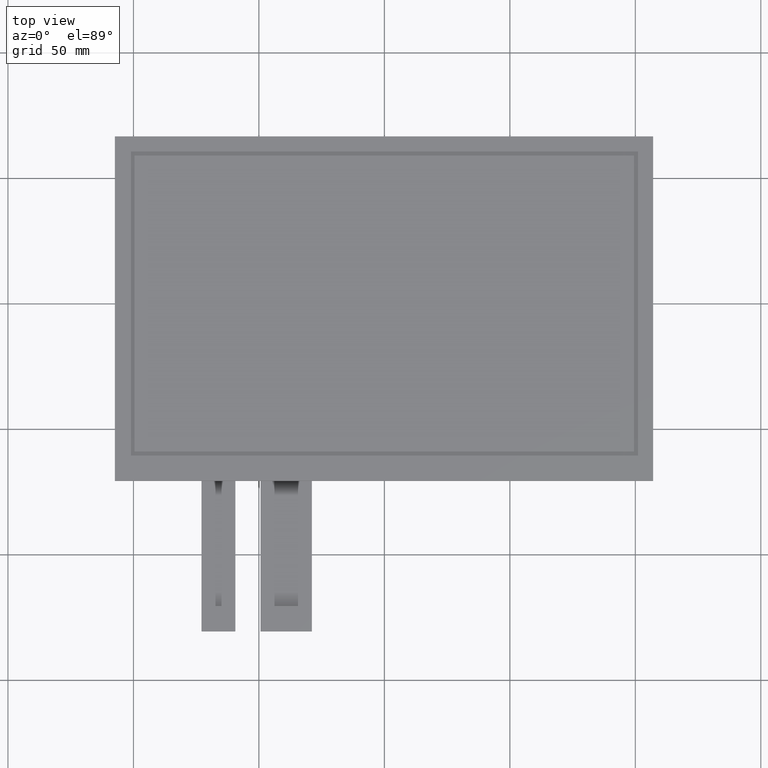
[diagram: clean part render]
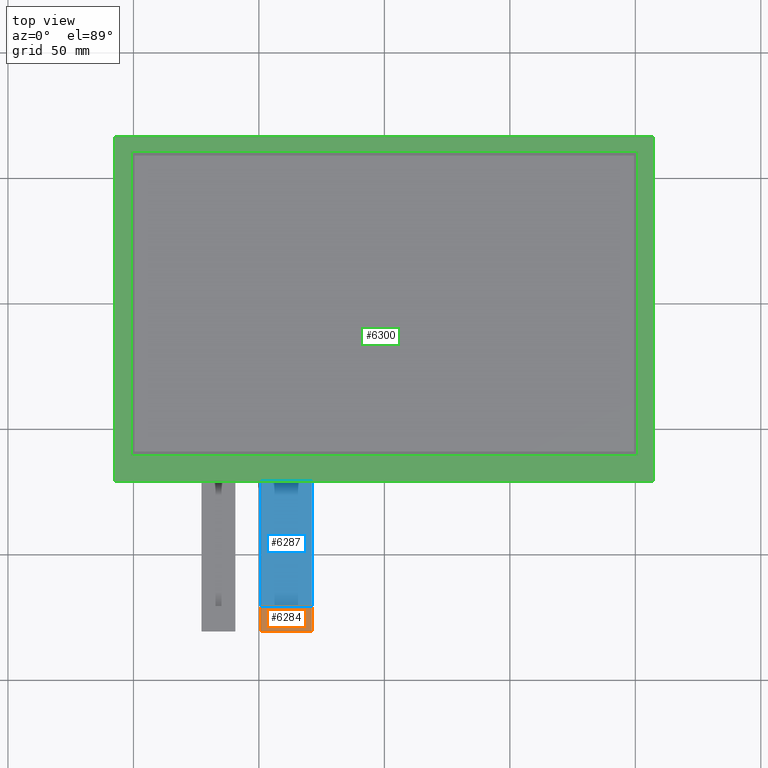
[diagram: same view with three faces highlighted in distinct colors, each labeled with its STEP entity id]
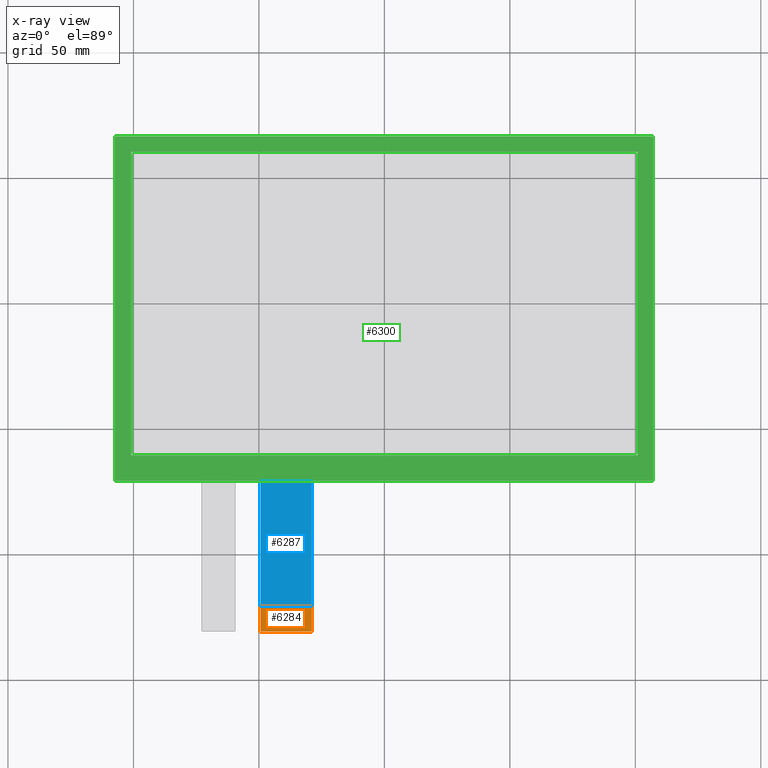
[diagram: x-ray of the same camera — body ghosted, the three highlighted faces saturated]
A machine part, top view with three faces highlighted in distinct colors.
The next image is the same camera in x-ray (body ghosted, the three faces saturated) — at least one of them is partly hidden behind the body in this view.
Their STEP definitions:

[orange] entity #6284 — the highlighted planar face has unit normal (0, 0, 1).
#346=PLANE('',#6614);
#648=FACE_OUTER_BOUND('',#950,.T.);
#950=EDGE_LOOP('',(#5889,#5890,#5891,#5892,#5893,#5894));
#1263=LINE('',#8727,#2143);
#1274=LINE('',#8753,#2154);
#1808=LINE('',#9822,#2688);
#1814=LINE('',#9832,#2694);
#2143=VECTOR('',#6953,10.);
#2154=VECTOR('',#6974,10.);
#2688=VECTOR('',#8042,10.);
#2694=VECTOR('',#8050,10.);
#2741=CIRCLE('',#6338,0.2);
#2744=CIRCLE('',#6344,0.2);
#2866=VERTEX_POINT('',#8394);
#2867=VERTEX_POINT('',#8395);
#3031=VERTEX_POINT('',#8725);
#3035=VERTEX_POINT('',#8737);
#3041=VERTEX_POINT('',#8751);
#3309=VERTEX_POINT('',#9821);
#3463=EDGE_CURVE('',#2866,#2867,#2741,.T.);
#3629=EDGE_CURVE('',#2866,#3031,#1263,.T.);
#3635=EDGE_CURVE('',#3035,#3031,#2744,.T.);
#3642=EDGE_CURVE('',#3035,#3041,#1274,.T.);
#4176=EDGE_CURVE('',#3309,#2867,#1808,.T.);
#4182=EDGE_CURVE('',#3041,#3309,#1814,.T.);
#5889=ORIENTED_EDGE('',*,*,#3463,.F.);
#5890=ORIENTED_EDGE('',*,*,#3629,.T.);
#5891=ORIENTED_EDGE('',*,*,#3635,.F.);
#5892=ORIENTED_EDGE('',*,*,#3642,.T.);
#5893=ORIENTED_EDGE('',*,*,#4182,.T.);
#5894=ORIENTED_EDGE('',*,*,#4176,.T.);
#6284=ADVANCED_FACE('',(#648),#346,.T.);
#6338=AXIS2_PLACEMENT_3D('',#8396,#6783,#6784);
#6344=AXIS2_PLACEMENT_3D('',#8739,#6964,#6965);
#6614=AXIS2_PLACEMENT_3D('',#9833,#8051,#8052);
#6783=DIRECTION('center_axis',(0.,0.,-1.));
#6784=DIRECTION('ref_axis',(-0.707106781186548,-0.707106781186548,0.));
#6953=DIRECTION('',(1.,0.,0.));
#6964=DIRECTION('center_axis',(0.,0.,-1.));
#6965=DIRECTION('ref_axis',(0.707106781186563,-0.707106781186532,0.));
#6974=DIRECTION('',(0.,1.,0.));
#8042=DIRECTION('',(0.,-1.,0.));
#8050=DIRECTION('',(-1.,0.,0.));
#8051=DIRECTION('center_axis',(0.,0.,1.));
#8052=DIRECTION('ref_axis',(1.,0.,0.));
#8394=CARTESIAN_POINT('',(-49.18,-130.65,-0.8));
#8395=CARTESIAN_POINT('',(-49.3799999999999,-130.45,-0.8));
#8396=CARTESIAN_POINT('Origin',(-49.18,-130.45,-0.8));
#8725=CARTESIAN_POINT('',(-29.0799999999998,-130.65,-0.8));
#8727=CARTESIAN_POINT('',(-49.3799999999999,-130.65,-0.8));
#8737=CARTESIAN_POINT('',(-28.8799999999998,-130.45,-0.8));
#8739=CARTESIAN_POINT('Origin',(-29.0799999999998,-130.45,-0.8));
#8751=CARTESIAN_POINT('',(-28.8799999999998,-120.65,-0.8));
#8753=CARTESIAN_POINT('',(-28.8799999999998,-130.65,-0.8));
#9821=CARTESIAN_POINT('',(-49.3799999999999,-120.65,-0.8));
#9822=CARTESIAN_POINT('',(-49.3799999999999,-120.65,-0.8));
#9832=CARTESIAN_POINT('',(-28.8799999999998,-120.65,-0.8));
#9833=CARTESIAN_POINT('Origin',(-39.1299999999999,-125.65,-0.8));

[blue] entity #6287 — the highlighted planar face has unit normal (0, 0, 1).
#349=PLANE('',#6617);
#651=FACE_OUTER_BOUND('',#953,.T.);
#953=EDGE_LOOP('',(#5905,#5906,#5907,#5908));
#1272=LINE('',#8750,#2152);
#1810=LINE('',#9826,#2690);
#1813=LINE('',#9831,#2693);
#1817=LINE('',#9839,#2697);
#2152=VECTOR('',#6972,10.);
#2690=VECTOR('',#8044,10.);
#2693=VECTOR('',#8049,10.);
#2697=VECTOR('',#8061,10.);
#3039=VERTEX_POINT('',#8747);
#3040=VERTEX_POINT('',#8749);
#3310=VERTEX_POINT('',#9823);
#3311=VERTEX_POINT('',#9825);
#3640=EDGE_CURVE('',#3040,#3039,#1272,.T.);
#4178=EDGE_CURVE('',#3311,#3310,#1810,.T.);
#4181=EDGE_CURVE('',#3310,#3040,#1813,.T.);
#4185=EDGE_CURVE('',#3311,#3039,#1817,.T.);
#5905=ORIENTED_EDGE('',*,*,#4181,.T.);
#5906=ORIENTED_EDGE('',*,*,#3640,.T.);
#5907=ORIENTED_EDGE('',*,*,#4185,.F.);
#5908=ORIENTED_EDGE('',*,*,#4178,.T.);
#6287=ADVANCED_FACE('',(#651),#349,.T.);
#6617=AXIS2_PLACEMENT_3D('',#9838,#8059,#8060);
#6972=DIRECTION('',(-3.7007434154172E-16,1.,0.));
#8044=DIRECTION('',(2.96059473233376E-16,-1.,0.));
#8049=DIRECTION('',(1.,0.,0.));
#8059=DIRECTION('center_axis',(0.,0.,1.));
#8060=DIRECTION('ref_axis',(1.,0.,0.));
#8061=DIRECTION('',(1.,1.65627677333357E-16,0.));
#8747=CARTESIAN_POINT('',(-28.8799999999998,-70.65,-1.1));
#8749=CARTESIAN_POINT('',(-28.8799999999998,-120.65,-1.1));
#8750=CARTESIAN_POINT('',(-28.8799999999998,-130.65,-1.1));
#9823=CARTESIAN_POINT('',(-49.3799999999999,-120.65,-1.1));
#9825=CARTESIAN_POINT('',(-49.38,-70.65,-1.1));
#9826=CARTESIAN_POINT('',(-49.38,-70.65,-1.1));
#9831=CARTESIAN_POINT('',(-34.0049999999998,-120.65,-1.1));
#9838=CARTESIAN_POINT('Origin',(-39.1299999999999,-100.65,-1.1));
#9839=CARTESIAN_POINT('',(33.9850000000001,-70.65,-1.1));

[green] entity #6300 — the highlighted planar face has unit normal (0, 0, 1).
#68=FACE_BOUND('',#968,.T.);
#362=PLANE('',#6630);
#664=FACE_OUTER_BOUND('',#967,.T.);
#967=EDGE_LOOP('',(#5961,#5962,#5963,#5964));
#968=EDGE_LOOP('',(#5965,#5966,#5967,#5968));
#1833=LINE('',#9873,#2713);
#1837=LINE('',#9881,#2717);
#1840=LINE('',#9887,#2720);
#1843=LINE('',#9892,#2723);
#1845=LINE('',#9898,#2725);
#1846=LINE('',#9900,#2726);
#1847=LINE('',#9902,#2727);
#1848=LINE('',#9903,#2728);
#2713=VECTOR('',#8093,10.);
#2717=VECTOR('',#8099,10.);
#2720=VECTOR('',#8104,10.);
#2723=VECTOR('',#8109,10.);
#2725=VECTOR('',#8115,10.);
#2726=VECTOR('',#8116,10.);
#2727=VECTOR('',#8117,10.);
#2728=VECTOR('',#8118,10.);
#3321=VERTEX_POINT('',#9871);
#3322=VERTEX_POINT('',#9872);
#3325=VERTEX_POINT('',#9880);
#3327=VERTEX_POINT('',#9886);
#3329=VERTEX_POINT('',#9896);
#3330=VERTEX_POINT('',#9897);
#3331=VERTEX_POINT('',#9899);
#3332=VERTEX_POINT('',#9901);
#4201=EDGE_CURVE('',#3321,#3322,#1833,.T.);
#4205=EDGE_CURVE('',#3325,#3321,#1837,.T.);
#4208=EDGE_CURVE('',#3327,#3325,#1840,.T.);
#4211=EDGE_CURVE('',#3322,#3327,#1843,.T.);
#4213=EDGE_CURVE('',#3329,#3330,#1845,.T.);
#4214=EDGE_CURVE('',#3330,#3331,#1846,.T.);
#4215=EDGE_CURVE('',#3331,#3332,#1847,.T.);
#4216=EDGE_CURVE('',#3332,#3329,#1848,.T.);
#5961=ORIENTED_EDGE('',*,*,#4213,.T.);
#5962=ORIENTED_EDGE('',*,*,#4214,.T.);
#5963=ORIENTED_EDGE('',*,*,#4215,.T.);
#5964=ORIENTED_EDGE('',*,*,#4216,.T.);
#5965=ORIENTED_EDGE('',*,*,#4201,.T.);
#5966=ORIENTED_EDGE('',*,*,#4211,.T.);
#5967=ORIENTED_EDGE('',*,*,#4208,.T.);
#5968=ORIENTED_EDGE('',*,*,#4205,.T.);
#6300=ADVANCED_FACE('',(#664,#68),#362,.T.);
#6630=AXIS2_PLACEMENT_3D('',#9895,#8113,#8114);
#8093=DIRECTION('',(-1.46685122989286E-16,1.,0.));
#8099=DIRECTION('',(-1.,-1.75876914792104E-16,0.));
#8104=DIRECTION('',(-1.46685122989286E-16,-1.,0.));
#8109=DIRECTION('',(1.,-4.3969228698026E-17,0.));
#8113=DIRECTION('center_axis',(0.,0.,1.));
#8114=DIRECTION('ref_axis',(1.,0.,0.));
#8115=DIRECTION('',(-1.,0.,0.));
#8116=DIRECTION('',(1.29377774173361E-16,-1.,0.));
#8117=DIRECTION('',(1.,1.65627677333357E-16,0.));
#8118=DIRECTION('',(1.29377774173361E-16,1.,0.));
#9871=CARTESIAN_POINT('',(-101.,-60.55,0.));
#9872=CARTESIAN_POINT('',(-101.,60.55,0.));
#9873=CARTESIAN_POINT('',(-101.,-31.275,0.));
#9880=CARTESIAN_POINT('',(101.,-60.55,0.));
#9881=CARTESIAN_POINT('',(50.425,-60.55,0.));
#9886=CARTESIAN_POINT('',(101.,60.55,0.));
#9887=CARTESIAN_POINT('',(101.,29.275,0.));
#9892=CARTESIAN_POINT('',(-50.575,60.55,0.));
#9895=CARTESIAN_POINT('Origin',(-0.149999999999988,-1.99999999999998,0.));
#9896=CARTESIAN_POINT('',(107.1,66.65,0.));
#9897=CARTESIAN_POINT('',(-107.4,66.65,0.));
#9898=CARTESIAN_POINT('',(107.1,66.65,0.));
#9899=CARTESIAN_POINT('',(-107.4,-70.65,0.));
#9900=CARTESIAN_POINT('',(-107.4,66.65,0.));
#9901=CARTESIAN_POINT('',(107.1,-70.65,0.));
#9902=CARTESIAN_POINT('',(-107.4,-70.65,0.));
#9903=CARTESIAN_POINT('',(107.1,-70.65,0.));